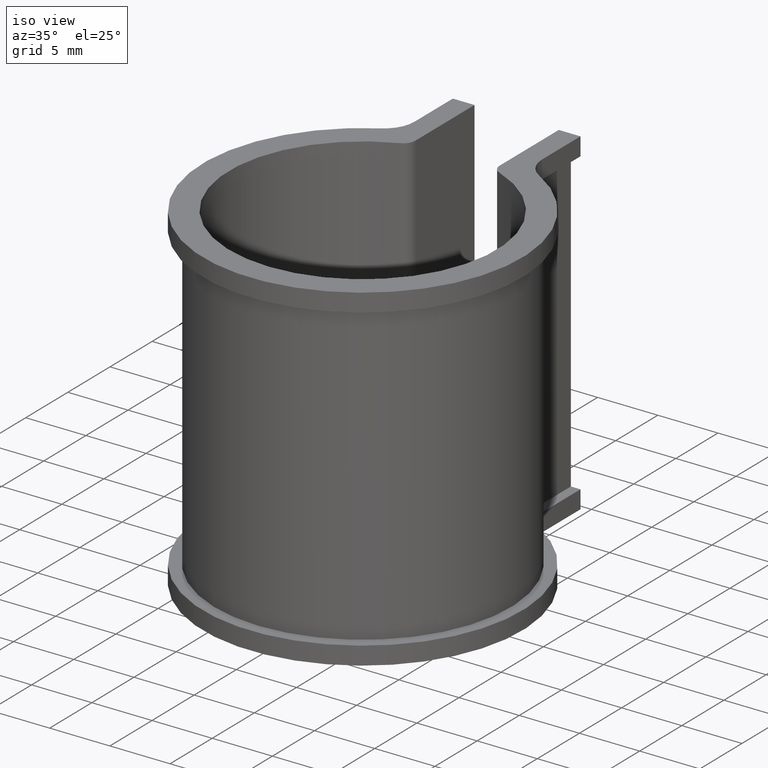
[diagram: clean part render]
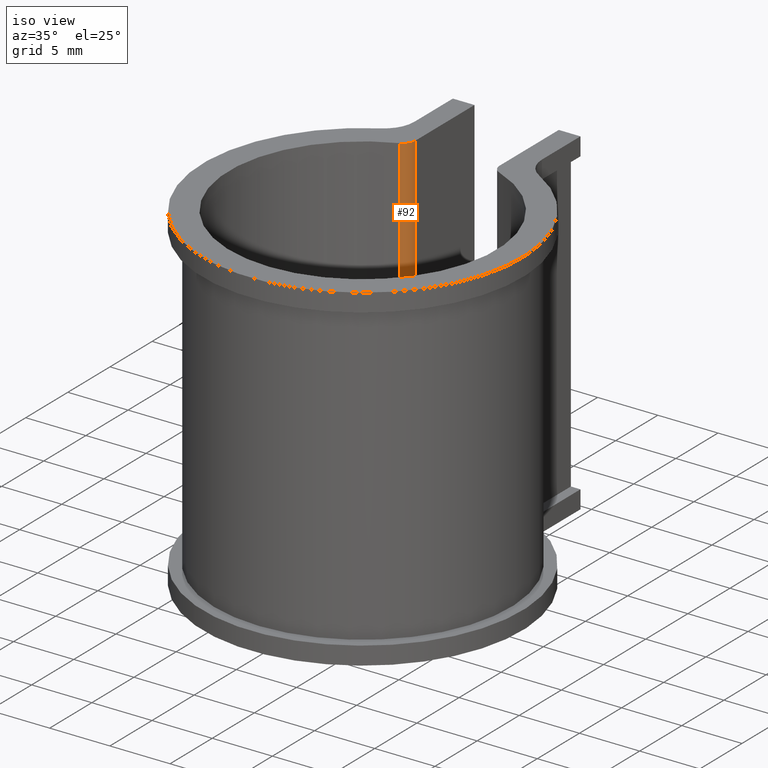
[diagram: same view with one face highlighted and labeled with its STEP entity id]
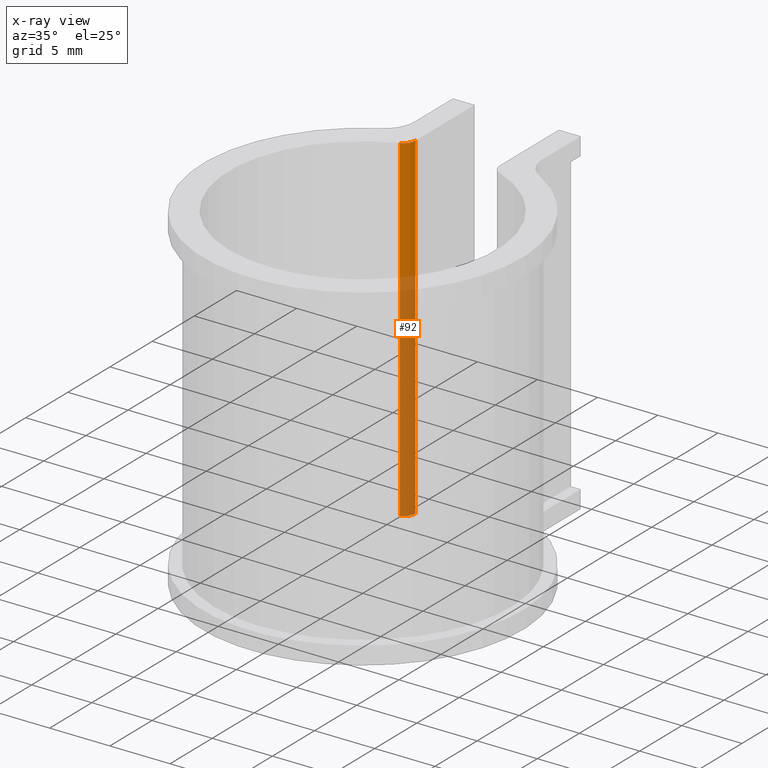
[diagram: x-ray of the same camera — body ghosted, the highlighted face saturated]
A machine part, iso view. The second image highlights one B-rep face of the part: STEP entity #92.
The next image is the same camera in x-ray: the body ghosted, the highlighted face saturated — about 64% of this face is hidden behind the body in this view.
In plain terms, the highlighted cylindrical surface (edge-blend (fillet) strip) has radius 1 mm, axis along (0, 0, -1).
Its self-contained STEP definition (entity closure, byte-faithful):
#92 = ADVANCED_FACE( '', ( #136 ), #137, .T. );
#136 = FACE_OUTER_BOUND( '', #188, .T. );
#137 = CYLINDRICAL_SURFACE( '', #189, 1.00000000000000 );
#188 = EDGE_LOOP( '', ( #365, #366, #367, #368 ) );
#189 = AXIS2_PLACEMENT_3D( '', #369, #370, #371 );
#365 = ORIENTED_EDGE( '', *, *, #471, .F. );
#366 = ORIENTED_EDGE( '', *, *, #494, .F. );
#367 = ORIENTED_EDGE( '', *, *, #482, .F. );
#368 = ORIENTED_EDGE( '', *, *, #492, .F. );
#369 = CARTESIAN_POINT( '', ( -4.50000000000000, 11.2428688509650, -25.0000000000000 ) );
#370 = DIRECTION( '', ( 0.000000000000000, 0.000000000000000, -1.00000000000000 ) );
#371 = DIRECTION( '', ( 1.00000000000000, 0.000000000000000, 0.000000000000000 ) );
#471 = EDGE_CURVE( '', #578, #580, #581, .F. );
#482 = EDGE_CURVE( '', #596, #598, #599, .T. );
#492 = EDGE_CURVE( '', #580, #596, #612, .T. );
#494 = EDGE_CURVE( '', #598, #578, #614, .F. );
#578 = VERTEX_POINT( '', #726 );
#580 = VERTEX_POINT( '', #729 );
#581 = CIRCLE( '', #730, 1.00000000000000 );
#596 = VERTEX_POINT( '', #751 );
#598 = VERTEX_POINT( '', #753 );
#599 = CIRCLE( '', #754, 1.00000000000000 );
#612 = LINE( '', #772, #773 );
#614 = LINE( '', #776, #777 );
#726 = CARTESIAN_POINT( '', ( -3.50000000000000, 11.2428688509650, -26.5000000000000 ) );
#729 = CARTESIAN_POINT( '', ( -4.12840627580512, 10.3144734049729, -26.5000000000000 ) );
#730 = AXIS2_PLACEMENT_3D( '', #859, #860, #861 );
#751 = CARTESIAN_POINT( '', ( -4.12840627580512, 10.3144734049729, 1.50000000000000 ) );
#753 = CARTESIAN_POINT( '', ( -3.50000000000000, 11.2428688509650, 1.50000000000000 ) );
#754 = AXIS2_PLACEMENT_3D( '', #880, #881, #882 );
#772 = CARTESIAN_POINT( '', ( -4.12840627580512, 10.3144734049729, -25.0000000000000 ) );
#773 = VECTOR( '', #900, 1000.00000000000 );
#776 = CARTESIAN_POINT( '', ( -3.50000000000000, 11.2428688509650, -25.0000000000000 ) );
#777 = VECTOR( '', #902, 1000.00000000000 );
#859 = CARTESIAN_POINT( '', ( -4.50000000000000, 11.2428688509650, -26.5000000000000 ) );
#860 = DIRECTION( '', ( 0.000000000000000, 0.000000000000000, 1.00000000000000 ) );
#861 = DIRECTION( '', ( 1.00000000000000, 0.000000000000000, 0.000000000000000 ) );
#880 = CARTESIAN_POINT( '', ( -4.50000000000000, 11.2428688509650, 1.50000000000000 ) );
#881 = DIRECTION( '', ( 0.000000000000000, 0.000000000000000, 1.00000000000000 ) );
#882 = DIRECTION( '', ( 1.00000000000000, 0.000000000000000, 0.000000000000000 ) );
#900 = DIRECTION( '', ( 0.000000000000000, 0.000000000000000, 1.00000000000000 ) );
#902 = DIRECTION( '', ( 0.000000000000000, 0.000000000000000, 1.00000000000000 ) );